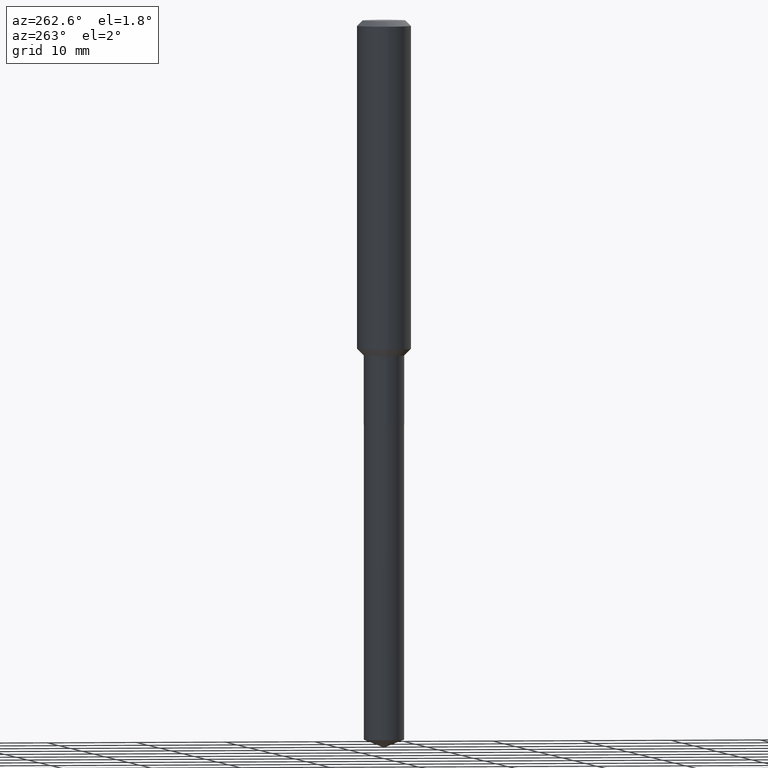
[diagram: clean part render]
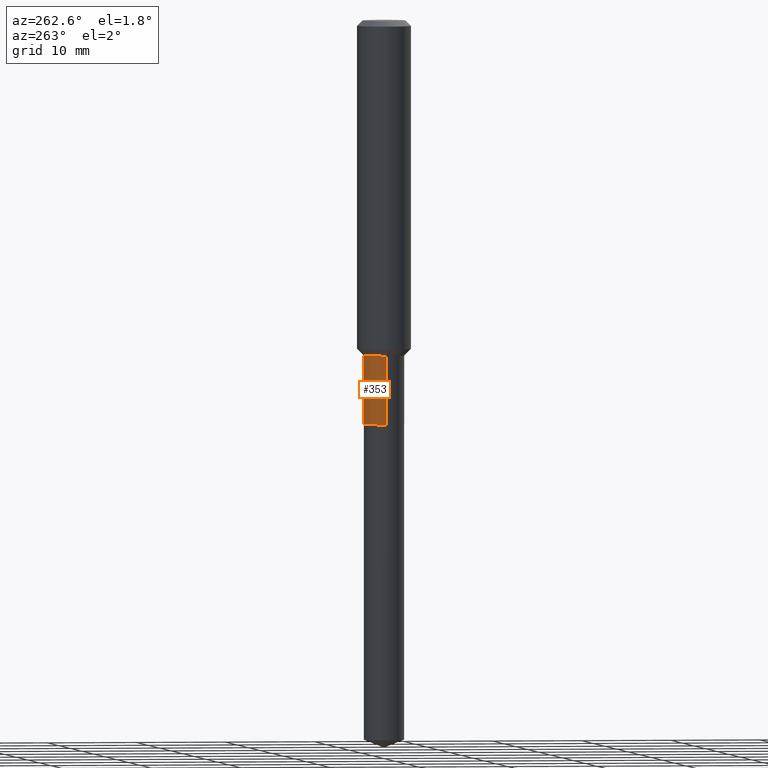
[diagram: same view with one face highlighted and labeled with its STEP entity id]
A machine part, auxiliary view. The second image highlights one B-rep face of the part: STEP entity #353.
In plain terms, the highlighted cylindrical surface (edge-blend (fillet) strip) has radius 2.2504 mm, axis along (-0, 0, 1).
Its self-contained STEP definition (entity closure, byte-faithful):
#11 = VERTEX_POINT ( 'NONE', #139 ) ;
#48 = DIRECTION ( 'NONE',  ( -2.445468806185136597E-29, 3.491481338843145583E-15, 1.000000000000000000 ) ) ;
#72 = ORIENTED_EDGE ( 'NONE', *, *, #486, .F. ) ;
#73 = EDGE_CURVE ( 'NONE', #439, #11, #219, .T. ) ;
#94 = CARTESIAN_POINT ( 'NONE',  ( 0.08859999999999998432, -6.186904932430030515E-16, 4.320292623355198064E-30 ) ) ;
#98 = CARTESIAN_POINT ( 'NONE',  ( 0.000000000000000000, 0.000000000000000000, 0.000000000000000000 ) ) ;
#125 = ORIENTED_EDGE ( 'NONE', *, *, #415, .T. ) ;
#132 = DIRECTION ( 'NONE',  ( 1.000000000000000000, -6.982962677686269077E-15, 0.000000000000000000 ) ) ;
#135 = CARTESIAN_POINT ( 'NONE',  ( 0.08859999999999995657, -5.749422320673005468E-15, -1.469500000000000250 ) ) ;
#139 = CARTESIAN_POINT ( 'NONE',  ( -0.08859999999999999820, -5.027880923511043773E-15, -1.771200000000000552 ) ) ;
#168 = CARTESIAN_POINT ( 'NONE',  ( 0.08859999999999999820, -6.802802240601984897E-15, -1.771200000000000552 ) ) ;
#169 = VECTOR ( 'NONE', #185, 39.37007874015748143 ) ;
#185 = DIRECTION ( 'NONE',  ( -2.445468806185136877E-29, 3.491481338843145188E-15, 1.000000000000000000 ) ) ;
#187 = DIRECTION ( 'NONE',  ( -2.445468806185136597E-29, 3.491481338843145583E-15, 1.000000000000000000 ) ) ;
#188 = ORIENTED_EDGE ( 'NONE', *, *, #73, .T. ) ;
#198 = AXIS2_PLACEMENT_3D ( 'NONE', #98, #407, #481 ) ;
#214 = FACE_OUTER_BOUND ( 'NONE', #368, .T. ) ;
#219 = CIRCLE ( 'NONE', #349, 0.08859999999999999820 ) ;
#226 = DIRECTION ( 'NONE',  ( 1.000000000000000000, -6.982962677686261189E-15, 0.000000000000000000 ) ) ;
#251 = VECTOR ( 'NONE', #315, 39.37007874015748143 ) ;
#266 = VERTEX_POINT ( 'NONE', #317 ) ;
#274 = LINE ( 'NONE', #94, #251 ) ;
#275 = ORIENTED_EDGE ( 'NONE', *, *, #466, .F. ) ;
#288 = AXIS2_PLACEMENT_3D ( 'NONE', #305, #48, #226 ) ;
#305 = CARTESIAN_POINT ( 'NONE',  ( 3.593616410689059139E-29, -5.130731827430003304E-15, -1.469500000000000250 ) ) ;
#315 = DIRECTION ( 'NONE',  ( -2.445468806185136877E-29, 3.491481338843145188E-15, 1.000000000000000000 ) ) ;
#317 = CARTESIAN_POINT ( 'NONE',  ( -0.08859999999999995657, -5.027880923511043773E-15, -1.469500000000000250 ) ) ;
#335 = LINE ( 'NONE', #370, #169 ) ;
#349 = AXIS2_PLACEMENT_3D ( 'NONE', #364, #187, #132 ) ;
#353 = ADVANCED_FACE ( 'NONE', ( #214 ), #441, .T. ) ;
#364 = CARTESIAN_POINT ( 'NONE',  ( 4.331414349515115307E-29, -6.184111747358981944E-15, -1.771200000000000552 ) ) ;
#368 = EDGE_LOOP ( 'NONE', ( #188, #125, #72, #275 ) ) ;
#370 = CARTESIAN_POINT ( 'NONE',  ( -0.08859999999999998432, 6.295408638834486533E-16, -4.358176489965845566E-30 ) ) ;
#407 = DIRECTION ( 'NONE',  ( -2.445468806185136597E-29, 3.491481338843145583E-15, 1.000000000000000000 ) ) ;
#415 = EDGE_CURVE ( 'NONE', #11, #266, #335, .T. ) ;
#435 = VERTEX_POINT ( 'NONE', #135 ) ;
#439 = VERTEX_POINT ( 'NONE', #168 ) ;
#441 = CYLINDRICAL_SURFACE ( 'NONE', #198, 0.08859999999999998432 ) ;
#466 = EDGE_CURVE ( 'NONE', #439, #435, #274, .T. ) ;
#480 = CIRCLE ( 'NONE', #288, 0.08859999999999995657 ) ;
#481 = DIRECTION ( 'NONE',  ( 1.000000000000000000, -6.982962677686265922E-15, 4.876176775795935232E-29 ) ) ;
#486 = EDGE_CURVE ( 'NONE', #435, #266, #480, .T. ) ;